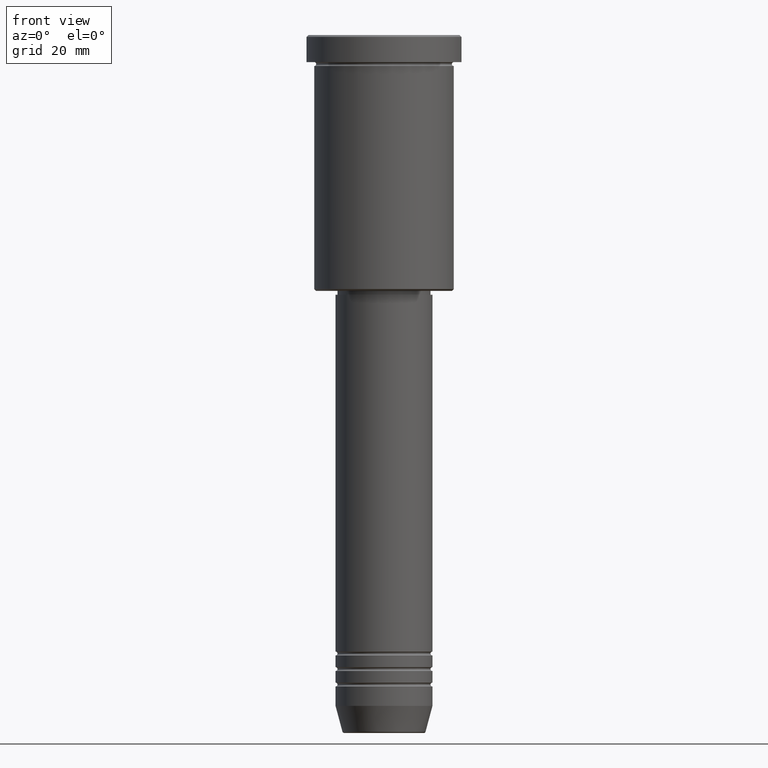
[diagram: clean part render]
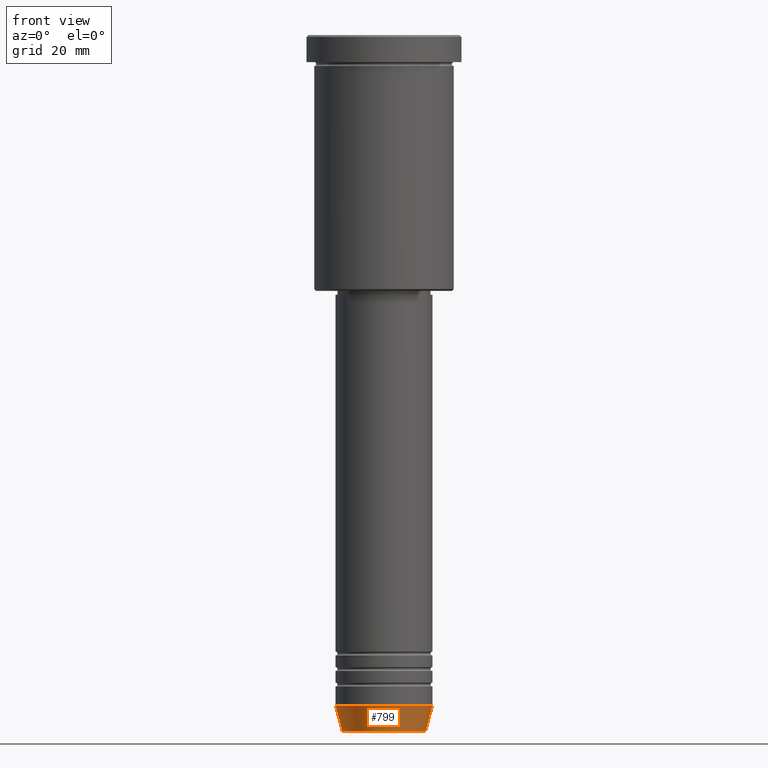
[diagram: same view with one face highlighted and labeled with its STEP entity id]
A machine part, front view. The second image highlights one B-rep face of the part: STEP entity #799.
In plain terms, the highlighted conical surface has half-angle 15 deg.
Its self-contained STEP definition (entity closure, byte-faithful):
#25 = VERTEX_POINT ( 'NONE', #98 ) ;
#79 = CARTESIAN_POINT ( 'NONE',  ( 12.50000000000000000, 0.000000000000000000, -173.0000000000000284 ) ) ;
#98 = CARTESIAN_POINT ( 'NONE',  ( 12.50000000000000000, 0.000000000000000000, -173.0000000000000284 ) ) ;
#101 = CARTESIAN_POINT ( 'NONE',  ( 10.72365507213719127, 0.000000000000000000, -179.6294095225512706 ) ) ;
#128 = ORIENTED_EDGE ( 'NONE', *, *, #1033, .F. ) ;
#158 = DIRECTION ( 'NONE',  ( -0.2588190451025213501, 3.169619151431772337E-17, 0.9659258262890680902 ) ) ;
#166 = CARTESIAN_POINT ( 'NONE',  ( -12.50000000000000000, 1.530808498934191521E-15, -173.0000000000000284 ) ) ;
#190 = CIRCLE ( 'NONE', #1140, 12.50000000000000000 ) ;
#194 = VECTOR ( 'NONE', #622, 1000.000000000000000 ) ;
#228 = VECTOR ( 'NONE', #158, 1000.000000000000000 ) ;
#238 = DIRECTION ( 'NONE',  ( -0.000000000000000000, -0.000000000000000000, 1.000000000000000000 ) ) ;
#273 = EDGE_LOOP ( 'NONE', ( #128, #862, #1127, #752 ) ) ;
#295 = CARTESIAN_POINT ( 'NONE',  ( 0.000000000000000000, 0.000000000000000000, -173.0000000000000284 ) ) ;
#314 = VERTEX_POINT ( 'NONE', #166 ) ;
#330 = EDGE_CURVE ( 'NONE', #756, #926, #381, .T. ) ;
#334 = CARTESIAN_POINT ( 'NONE',  ( -12.50000000000000000, 1.530808498934191521E-15, -173.0000000000000284 ) ) ;
#345 = AXIS2_PLACEMENT_3D ( 'NONE', #1056, #238, #607 ) ;
#381 = CIRCLE ( 'NONE', #420, 10.72365507213719127 ) ;
#412 = LINE ( 'NONE', #334, #228 ) ;
#420 = AXIS2_PLACEMENT_3D ( 'NONE', #1172, #882, #901 ) ;
#474 = DIRECTION ( 'NONE',  ( -0.000000000000000000, -0.000000000000000000, 1.000000000000000000 ) ) ;
#504 = EDGE_CURVE ( 'NONE', #314, #25, #190, .T. ) ;
#540 = FACE_OUTER_BOUND ( 'NONE', #273, .T. ) ;
#607 = DIRECTION ( 'NONE',  ( 1.000000000000000000, 0.000000000000000000, 0.000000000000000000 ) ) ;
#622 = DIRECTION ( 'NONE',  ( 0.2588190451025213501, 0.000000000000000000, 0.9659258262890680902 ) ) ;
#752 = ORIENTED_EDGE ( 'NONE', *, *, #504, .F. ) ;
#756 = VERTEX_POINT ( 'NONE', #1171 ) ;
#758 = EDGE_CURVE ( 'NONE', #926, #25, #881, .T. ) ;
#763 = CONICAL_SURFACE ( 'NONE', #345, 12.50000000000000000, 0.2617993877991500740 ) ;
#799 = ADVANCED_FACE ( 'NONE', ( #540 ), #763, .T. ) ;
#862 = ORIENTED_EDGE ( 'NONE', *, *, #330, .T. ) ;
#881 = LINE ( 'NONE', #79, #194 ) ;
#882 = DIRECTION ( 'NONE',  ( -0.000000000000000000, -0.000000000000000000, 1.000000000000000000 ) ) ;
#901 = DIRECTION ( 'NONE',  ( 1.000000000000000000, 0.000000000000000000, 0.000000000000000000 ) ) ;
#926 = VERTEX_POINT ( 'NONE', #101 ) ;
#1020 = DIRECTION ( 'NONE',  ( 1.000000000000000000, 0.000000000000000000, 0.000000000000000000 ) ) ;
#1033 = EDGE_CURVE ( 'NONE', #756, #314, #412, .T. ) ;
#1056 = CARTESIAN_POINT ( 'NONE',  ( 0.000000000000000000, 0.000000000000000000, -173.0000000000000284 ) ) ;
#1127 = ORIENTED_EDGE ( 'NONE', *, *, #758, .T. ) ;
#1140 = AXIS2_PLACEMENT_3D ( 'NONE', #295, #474, #1020 ) ;
#1171 = CARTESIAN_POINT ( 'NONE',  ( -10.72365507213719127, 1.422038742429750516E-15, -179.6294095225512706 ) ) ;
#1172 = CARTESIAN_POINT ( 'NONE',  ( 0.000000000000000000, 0.000000000000000000, -179.6294095225512706 ) ) ;